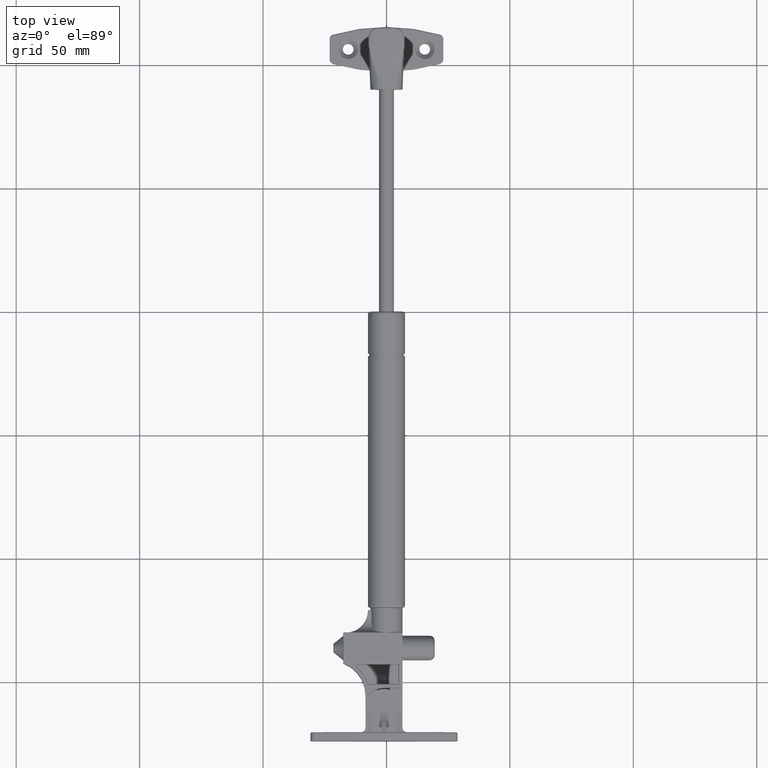
[diagram: clean part render]
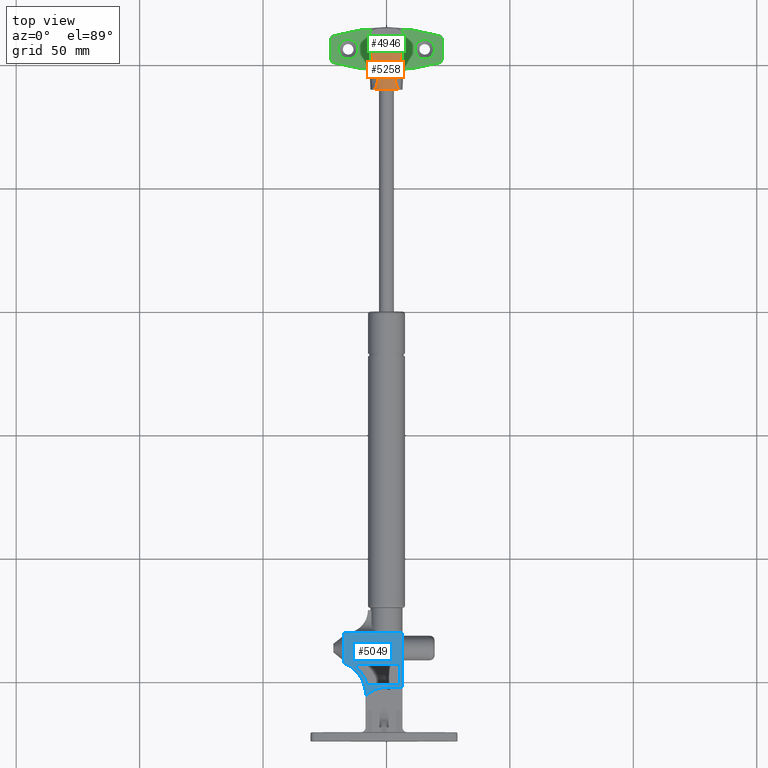
[diagram: same view with three faces highlighted in distinct colors, each labeled with its STEP entity id]
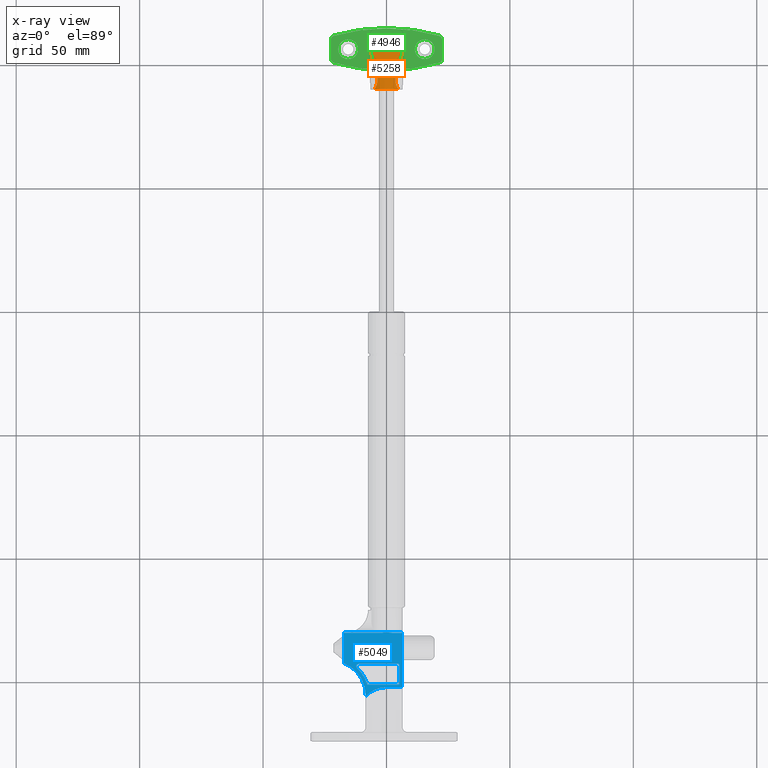
[diagram: x-ray of the same camera — body ghosted, the three highlighted faces saturated]
A machine part, top view with three faces highlighted in distinct colors.
The next image is the same camera in x-ray (body ghosted, the three faces saturated) — at least one of them is partly hidden behind the body in this view.
Their STEP definitions:

[orange] entity #5258 — the highlighted face is a freeform B-spline surface patch.
#132=B_SPLINE_CURVE_WITH_KNOTS('',3,(#10547,#10548,#10549,#10550,#10551,
#10552,#10553,#10554,#10555,#10556,#10557,#10558,#10559,#10560,#10561,#10562,
#10563,#10564,#10565,#10566,#10567,#10568,#10569,#10570,#10571,#10572,#10573,
#10574,#10575,#10576,#10577),.UNSPECIFIED.,.F.,.F.,(4,2,1,1,1,1,1,1,1,1,
1,1,1,1,1,1,1,1,1,1,1,1,1,1,1,1,1,4),(-5.18697830607912E-18,0.005999999454989,
0.0819430921341504,0.157886184813312,0.309772370171635,0.461658555529957,
0.61354474088828,0.689487833567441,0.765430926246603,0.841374018925764,
0.917317111604925,0.993260204284087,1.06920329696325,1.14514638964241,1.22108948232157,
1.29703257500073,1.37297566767989,1.44891876035906,1.52486185303822,1.60080494571738,
1.67674803839654,1.7526911310757,1.82863422375486,1.82977864950824,1.8309230754011,
1.83141785945748,1.83190656029675,1.83231392250842),.UNSPECIFIED.);
#135=B_SPLINE_CURVE_WITH_KNOTS('',3,(#10691,#10692,#10693,#10694,#10695,
#10696,#10697,#10698,#10699,#10700,#10701,#10702,#10703,#10704,#10705),
 .UNSPECIFIED.,.F.,.F.,(4,1,1,1,1,1,1,2,1,1,1,4),(1.83231400572769,1.83286935972674,
1.83335051197353,1.8338316533701,1.83431278390376,1.83479390356097,1.83527501233052,
1.83575611018608,1.83623719712616,1.83671827309807,1.83795860707612,1.83885858767025),
 .UNSPECIFIED.);
#165=B_SPLINE_CURVE_WITH_KNOTS('',3,(#11458,#11459,#11460,#11461,#11462,
#11463,#11464,#11465,#11466,#11467,#11468,#11469,#11470,#11471,#11472,#11473),
 .UNSPECIFIED.,.F.,.F.,(4,1,1,1,2,1,1,2,1,1,1,4),(4.28873465627844,4.28963520590476,
4.29087556718638,4.29135665487414,4.29183775374549,4.29231886344611,4.29279998397421,
4.29328111530315,4.29376225742148,4.29424341031536,4.29472457397187,4.29527947343608),
 .UNSPECIFIED.);
#166=B_SPLINE_CURVE_WITH_KNOTS('',3,(#11645,#11646,#11647,#11648,#11649,
#11650,#11651,#11652,#11653,#11654,#11655,#11656,#11657,#11658,#11659,#11660,
#11661,#11662,#11663,#11664,#11665,#11666,#11667,#11668,#11669,#11670,#11671,
#11672,#11673,#11674,#11675,#11676,#11677,#11678),.UNSPECIFIED.,.F.,.F.,
(4,1,1,1,1,1,1,1,1,1,1,1,1,1,1,1,1,1,1,1,1,1,1,1,1,1,1,1,1,2,4),(4.29527947343608,
4.29568722154669,4.2961759220629,4.29667069882611,4.29781512365342,4.29895954848117,
4.37489123419381,4.45082291990646,4.52675460561911,4.60268629133175,4.6786179770444,
4.75454966275704,4.83048134846969,4.90641303418233,4.98234471989498,5.05827640560763,
5.13420809132027,5.21013977703292,5.28607146274556,5.36200314845821,5.43793483417086,
5.5138665198835,5.58979820559615,5.66572989130879,5.74166157702144,5.81759326273409,
5.89352494844673,5.96945663415938,6.04538831987202,6.12132000558467,6.12732000558467),
 .UNSPECIFIED.);
#169=B_SPLINE_CURVE_WITH_KNOTS('',3,(#11744,#11745,#11746,#11747,#11748,
#11749),.UNSPECIFIED.,.F.,.F.,(4,2,4),(-0.699429970511352,-0.692719665874007,
-0.0442080078526685),.UNSPECIFIED.);
#171=B_SPLINE_CURVE_WITH_KNOTS('',3,(#11781,#11782,#11783,#11784,#11785,
#11786),.UNSPECIFIED.,.F.,.F.,(4,2,4),(-0.648530244733381,0.,0.00671030463730864),
 .UNSPECIFIED.);
#261=B_SPLINE_SURFACE_WITH_KNOTS('',3,3,((#11787,#11788,#11789,#11790),
(#11791,#11792,#11793,#11794),(#11795,#11796,#11797,#11798),(#11799,#11800,
#11801,#11802),(#11803,#11804,#11805,#11806),(#11807,#11808,#11809,#11810)),
 .UNSPECIFIED.,.F.,.F.,.F.,(4,1,1,4),(4,4),(0.,0.285714285714286,0.571428571428571,
1.),(0.,1.),.UNSPECIFIED.);
#1487=FACE_OUTER_BOUND('',#1909,.T.);
#1909=EDGE_LOOP('',(#4806,#4807,#4808,#4809,#4810,#4811,#4812));
#2238=CIRCLE('',#5892,6.5);
#2658=VERTEX_POINT('',#10508);
#2660=VERTEX_POINT('',#10515);
#2661=VERTEX_POINT('',#10668);
#2679=VERTEX_POINT('',#11296);
#2681=VERTEX_POINT('',#11434);
#2683=VERTEX_POINT('',#11644);
#2684=VERTEX_POINT('',#11737);
#3360=EDGE_CURVE('',#2660,#2658,#132,.T.);
#3363=EDGE_CURVE('',#2658,#2661,#135,.T.);
#3393=EDGE_CURVE('',#2679,#2681,#165,.T.);
#3394=EDGE_CURVE('',#2681,#2683,#166,.T.);
#3397=EDGE_CURVE('',#2684,#2679,#169,.T.);
#3399=EDGE_CURVE('',#2661,#2684,#171,.T.);
#3400=EDGE_CURVE('',#2683,#2660,#2238,.T.);
#4806=ORIENTED_EDGE('',*,*,#3394,.F.);
#4807=ORIENTED_EDGE('',*,*,#3393,.F.);
#4808=ORIENTED_EDGE('',*,*,#3397,.F.);
#4809=ORIENTED_EDGE('',*,*,#3399,.F.);
#4810=ORIENTED_EDGE('',*,*,#3363,.F.);
#4811=ORIENTED_EDGE('',*,*,#3360,.F.);
#4812=ORIENTED_EDGE('',*,*,#3400,.F.);
#5258=ADVANCED_FACE('',(#1487),#261,.F.);
#5892=AXIS2_PLACEMENT_3D('',#11811,#7355,#7356);
#7355=DIRECTION('center_axis',(0.,0.,-1.));
#7356=DIRECTION('ref_axis',(-1.,0.,0.));
#10508=CARTESIAN_POINT('',(-6.43486585605463,6.68592440987916,17.3809031736073));
#10515=CARTESIAN_POINT('',(-4.33904260238817,4.83970136420219,0.));
#10547=CARTESIAN_POINT('Ctrl Pts',(-4.33904260238817,4.83970136420219,4.48099834294438E-16));
#10548=CARTESIAN_POINT('Ctrl Pts',(-4.36415248476543,4.82379954177392,0.0273681504766424));
#10549=CARTESIAN_POINT('Ctrl Pts',(-4.38876921783388,4.80789931743702,0.0546645115043636));
#10550=CARTESIAN_POINT('Ctrl Pts',(-4.72045273705088,4.58833560795672,0.427567316963289));
#10551=CARTESIAN_POINT('Ctrl Pts',(-5.15566881977416,4.20687473016164,1.08438630508697));
#10552=CARTESIAN_POINT('Ctrl Pts',(-5.56710194835673,3.77574877536151,2.23649814429658));
#10553=CARTESIAN_POINT('Ctrl Pts',(-5.75791605558208,3.60329597723931,3.53776580255706));
#10554=CARTESIAN_POINT('Ctrl Pts',(-5.84157332482748,3.67924360206733,4.99199456476988));
#10555=CARTESIAN_POINT('Ctrl Pts',(-5.85558536912923,3.88776190126682,6.12960733774455));
#10556=CARTESIAN_POINT('Ctrl Pts',(-5.85578214954483,4.10632479712829,7.00478490584617));
#10557=CARTESIAN_POINT('Ctrl Pts',(-5.85274553217851,4.29013162309259,7.64754416306704));
#10558=CARTESIAN_POINT('Ctrl Pts',(-5.84995616271934,4.4879566514912,8.28201273007058));
#10559=CARTESIAN_POINT('Ctrl Pts',(-5.84964779140734,4.69527808408691,8.91379281761325));
#10560=CARTESIAN_POINT('Ctrl Pts',(-5.85410576443892,4.90804544667416,9.54861151518999));
#10561=CARTESIAN_POINT('Ctrl Pts',(-5.86517211143817,5.12274332541206,10.1918032593176));
#10562=CARTESIAN_POINT('Ctrl Pts',(-5.88442593138747,5.33601196887645,10.8476642991473));
#10563=CARTESIAN_POINT('Ctrl Pts',(-5.91299069281321,5.54445893630867,11.5188936920082));
#10564=CARTESIAN_POINT('Ctrl Pts',(-5.95151271291766,5.74448657503573,12.2066626762033));
#10565=CARTESIAN_POINT('Ctrl Pts',(-6.00004704441497,5.93232738230605,12.9106637082759));
#10566=CARTESIAN_POINT('Ctrl Pts',(-6.05799365491049,6.10427575772913,13.6292793412689));
#10567=CARTESIAN_POINT('Ctrl Pts',(-6.12408257827135,6.25722701291759,14.359894964402));
#10568=CARTESIAN_POINT('Ctrl Pts',(-6.1964988826131,6.38946623400103,15.0995315870299));
#10569=CARTESIAN_POINT('Ctrl Pts',(-6.27308311941986,6.50176851420749,15.8450590387318));
#10570=CARTESIAN_POINT('Ctrl Pts',(-6.35177462240882,6.59770150318796,16.5938342011688));
#10571=CARTESIAN_POINT('Ctrl Pts',(-6.40503759421406,6.65483529748817,17.0979839708344));
#10572=CARTESIAN_POINT('Ctrl Pts',(-6.43222309873817,6.68317365791434,17.3558348285359));
#10573=CARTESIAN_POINT('Ctrl Pts',(-6.4331903771855,6.68418104338633,17.365009763257));
#10574=CARTESIAN_POINT('Ctrl Pts',(-6.43392977422021,6.68495063700094,17.3720234665814));
#10575=CARTESIAN_POINT('Ctrl Pts',(-6.43441305132238,6.68545346431707,17.3766077950095));
#10576=CARTESIAN_POINT('Ctrl Pts',(-6.43472422692403,6.68577712184079,17.3795596478824));
#10577=CARTESIAN_POINT('Ctrl Pts',(-6.43486576930834,6.68592431966685,17.3809023507125));
#10668=CARTESIAN_POINT('',(-6.4416936914917,6.69278991922377,17.4456504672534));
#10691=CARTESIAN_POINT('Ctrl Pts',(-6.43486585605463,6.68592440987916,17.3809031736073));
#10692=CARTESIAN_POINT('Ctrl Pts',(-6.43505882886204,6.68612509306054,17.382733756983));
#10693=CARTESIAN_POINT('Ctrl Pts',(-6.43541901888678,6.68649861627549,17.3861504770443));
#10694=CARTESIAN_POINT('Ctrl Pts',(-6.43594648197059,6.68704271572181,17.3911536063881));
#10695=CARTESIAN_POINT('Ctrl Pts',(-6.43644821312774,6.68755772390865,17.3959123867664));
#10696=CARTESIAN_POINT('Ctrl Pts',(-6.43694999644508,6.68807024102113,17.4006713978307));
#10697=CARTESIAN_POINT('Ctrl Pts',(-6.43745183074069,6.68858026869294,17.4054306390023));
#10698=CARTESIAN_POINT('Ctrl Pts',(-6.43795371481308,6.68908780853244,17.4101901095024));
#10699=CARTESIAN_POINT('Ctrl Pts',(-6.43828834036222,6.68942451474717,17.4133632780762));
#10700=CARTESIAN_POINT('Ctrl Pts',(-6.43862297793048,6.68976038893558,17.4165364867874));
#10701=CARTESIAN_POINT('Ctrl Pts',(-6.43895762746221,6.69009543110069,17.4197097351144));
#10702=CARTESIAN_POINT('Ctrl Pts',(-6.43972376479193,6.69085860742892,17.4269741596968));
#10703=CARTESIAN_POINT('Ctrl Pts',(-6.44063579686679,6.69175890493986,17.4356212901697));
#10704=CARTESIAN_POINT('Ctrl Pts',(-6.44138030638799,6.69248552888034,17.4426795399398));
#10705=CARTESIAN_POINT('Ctrl Pts',(-6.44169353033975,6.69278976269732,17.4456489395142));
#11296=CARTESIAN_POINT('',(-6.44170058592167,-6.69259140240379,17.4456840500667));
#11434=CARTESIAN_POINT('',(-6.43487413106736,-6.68569380687724,17.3809403323942));
#11458=CARTESIAN_POINT('Ctrl Pts',(-6.44170058592167,-6.69259140240379,
17.4456840500667));
#11459=CARTESIAN_POINT('Ctrl Pts',(-6.44138724031413,-6.69228558820858,
17.4427130994168));
#11460=CARTESIAN_POINT('Ctrl Pts',(-6.44064238443157,-6.69155512266361,
17.4356506079478));
#11461=CARTESIAN_POINT('Ctrl Pts',(-6.43973037075518,-6.6906504808528,17.4270024422839));
#11462=CARTESIAN_POINT('Ctrl Pts',(-6.43896441243857,-6.68988377177739,
17.419738674093));
#11463=CARTESIAN_POINT('Ctrl Pts',(-6.43862984150417,-6.68954717572855,
17.4165657101706));
#11464=CARTESIAN_POINT('Ctrl Pts',(-6.43829528293155,-6.6892097425094,17.4133927865631));
#11465=CARTESIAN_POINT('Ctrl Pts',(-6.43796073688105,-6.68887147222237,
17.410219904785));
#11466=CARTESIAN_POINT('Ctrl Pts',(-6.43745897344249,-6.68836157107886,
17.4054608683408));
#11467=CARTESIAN_POINT('Ctrl Pts',(-6.43712450237306,-6.68801997212104,
17.4022883686522));
#11468=CARTESIAN_POINT('Ctrl Pts',(-6.43679004503117,-6.68767753446742,
17.3991159115539));
#11469=CARTESIAN_POINT('Ctrl Pts',(-6.43645560141373,-6.68733425805797,
17.3959434970106));
#11470=CARTESIAN_POINT('Ctrl Pts',(-6.43595399523817,-6.68681684291089,
17.3911851636391));
#11471=CARTESIAN_POINT('Ctrl Pts',(-6.4354268275804,-6.68627036517746,17.3861840502391));
#11472=CARTESIAN_POINT('Ctrl Pts',(-6.43506689189152,-6.68589526099596,
17.3827691984776));
#11473=CARTESIAN_POINT('Ctrl Pts',(-6.43487413106736,-6.68569380687724,
17.3809403323942));
#11644=CARTESIAN_POINT('',(-4.33904260238816,-4.83970136420219,0.));
#11645=CARTESIAN_POINT('Ctrl Pts',(-6.43487413106736,-6.68569380687724,
17.3809403323942));
#11646=CARTESIAN_POINT('Ctrl Pts',(-6.43473248764018,-6.68554577549213,
17.3795964552811));
#11647=CARTESIAN_POINT('Ctrl Pts',(-6.43442107755126,-6.6852202679982,17.3766419011214));
#11648=CARTESIAN_POINT('Ctrl Pts',(-6.43393778340827,-6.68471491515133,
17.3720566622781));
#11649=CARTESIAN_POINT('Ctrl Pts',(-6.43319856637466,-6.68394164791623,
17.3650435060301));
#11650=CARTESIAN_POINT('Ctrl Pts',(-6.43223152679269,-6.68292940419152,
17.355869287479));
#11651=CARTESIAN_POINT('Ctrl Pts',(-6.40505679044281,-6.65445661492058,
17.0980756618883));
#11652=CARTESIAN_POINT('Ctrl Pts',(-6.35182640262111,-6.5969236903321,16.5940598630598));
#11653=CARTESIAN_POINT('Ctrl Pts',(-6.27325041992989,-6.50000669372066,
15.8455760943684));
#11654=CARTESIAN_POINT('Ctrl Pts',(-6.19687329964649,-6.38645294227882,
15.1004683656102));
#11655=CARTESIAN_POINT('Ctrl Pts',(-6.12475904262576,-6.25287832622792,
14.3614095517777));
#11656=CARTESIAN_POINT('Ctrl Pts',(-6.05904278435508,-6.09869744711751,
13.6315212305585));
#11657=CARTESIAN_POINT('Ctrl Pts',(-6.00150145152056,-5.92572742253853,
12.9137264353219));
#11658=CARTESIAN_POINT('Ctrl Pts',(-5.95336479143297,-5.73711130125378,
12.2105627531198));
#11659=CARTESIAN_POINT('Ctrl Pts',(-5.91519870731436,-5.53655304092078,
11.5235622131637));
#11660=CARTESIAN_POINT('Ctrl Pts',(-5.88691972693854,-5.32780140585156,
10.8529481956439));
#11661=CARTESIAN_POINT('Ctrl Pts',(-5.86786834085297,-5.11442805301253,
10.197476797406));
#11662=CARTESIAN_POINT('Ctrl Pts',(-5.85690325498018,-4.89981145561399,
9.55439703638987));
#11663=CARTESIAN_POINT('Ctrl Pts',(-5.85246615738312,-4.68728786722651,
8.91940528462888));
#11664=CARTESIAN_POINT('Ctrl Pts',(-5.85267514401521,-4.48038978235295,
8.28718015146578));
#11665=CARTESIAN_POINT('Ctrl Pts',(-5.85535881256784,-4.28310292987209,
7.65207180434397));
#11666=CARTESIAN_POINT('Ctrl Pts',(-5.85807015316965,-4.10005900240722,
7.00850839856228));
#11667=CARTESIAN_POINT('Ctrl Pts',(-5.85789779784939,-3.93682531719411,
6.35135885811591));
#11668=CARTESIAN_POINT('Ctrl Pts',(-5.85151396602682,-3.79994011268791,
5.67668399814701));
#11669=CARTESIAN_POINT('Ctrl Pts',(-5.8343922915483,-3.69744164952966,4.98209901448646));
#11670=CARTESIAN_POINT('Ctrl Pts',(-5.80103909690767,-3.6385736094989,4.2659456934907));
#11671=CARTESIAN_POINT('Ctrl Pts',(-5.741149470015,-3.63654904919806,3.52497685639262));
#11672=CARTESIAN_POINT('Ctrl Pts',(-5.64164179952503,-3.70669122185886,
2.75631611218273));
#11673=CARTESIAN_POINT('Ctrl Pts',(-5.46616931604829,-3.88214900399613,
1.94913466803929));
#11674=CARTESIAN_POINT('Ctrl Pts',(-5.15525999572067,-4.20701998989903,
1.08411760489202));
#11675=CARTESIAN_POINT('Ctrl Pts',(-4.72049986578798,-4.58831214838663,
0.427552937177476));
#11676=CARTESIAN_POINT('Ctrl Pts',(-4.38876561005796,-4.80790110858756,
0.0546628654616471));
#11677=CARTESIAN_POINT('Ctrl Pts',(-4.36415256773894,-4.8237994486143,0.0273680727684804));
#11678=CARTESIAN_POINT('Ctrl Pts',(-4.33904260238815,-4.8397013642022,-5.82251849034034E-15));
#11737=CARTESIAN_POINT('',(-6.5,-4.96269692007445E-13,18.));
#11744=CARTESIAN_POINT('Ctrl Pts',(-6.5,-1.11022302462516E-15,18.));
#11745=CARTESIAN_POINT('Ctrl Pts',(-6.5,-0.0223676525561621,17.999999999977));
#11746=CARTESIAN_POINT('Ctrl Pts',(-6.5000194120652,-0.044734339900457,
17.9999919261881));
#11747=CARTESIAN_POINT('Ctrl Pts',(-6.49731167932179,-2.22896530891653,
17.99502928356));
#11748=CARTESIAN_POINT('Ctrl Pts',(-6.52323018624985,-4.39355932180683,
17.8353969512951));
#11749=CARTESIAN_POINT('Ctrl Pts',(-6.44178710938882,-6.6926010924759,17.4457231369711));
#11781=CARTESIAN_POINT('Ctrl Pts',(-6.4417762064863,6.6927991271387,17.4456875640613));
#11782=CARTESIAN_POINT('Ctrl Pts',(-6.52315400621419,4.39369054380115,17.8353466279657));
#11783=CARTESIAN_POINT('Ctrl Pts',(-6.49615157663385,2.22913398186824,17.9944141812846));
#11784=CARTESIAN_POINT('Ctrl Pts',(-6.50002785287376,0.0447336053791634,
17.9999963898566));
#11785=CARTESIAN_POINT('Ctrl Pts',(-6.5,0.022367652556203,17.9999999996379));
#11786=CARTESIAN_POINT('Ctrl Pts',(-6.5,-1.11022302462516E-15,18.));
#11787=CARTESIAN_POINT('Ctrl Pts',(-4.33904260238817,-4.83970136420219,
0.));
#11788=CARTESIAN_POINT('Ctrl Pts',(-5.05936173492544,-5.64313424280146,
6.));
#11789=CARTESIAN_POINT('Ctrl Pts',(-5.77968086746272,-6.44656712140073,
12.));
#11790=CARTESIAN_POINT('Ctrl Pts',(-6.5,-7.25,18.));
#11791=CARTESIAN_POINT('Ctrl Pts',(-5.1132930667581,-4.14554577545673,0.));
#11792=CARTESIAN_POINT('Ctrl Pts',(-5.57498007725741,-4.71994878979722,
6.));
#11793=CARTESIAN_POINT('Ctrl Pts',(-6.03831298950068,-5.29464460470713,
12.));
#11794=CARTESIAN_POINT('Ctrl Pts',(-6.5,-5.86904761904762,18.));
#11795=CARTESIAN_POINT('Ctrl Pts',(-6.31692899227135,-2.3817149841742,0.));
#11796=CARTESIAN_POINT('Ctrl Pts',(-6.37688396564228,-2.62404272304441,
6.00000000000001));
#11797=CARTESIAN_POINT('Ctrl Pts',(-6.44004502662907,-2.86481511827266,
12.));
#11798=CARTESIAN_POINT('Ctrl Pts',(-6.5,-3.10714285714286,18.));
#11799=CARTESIAN_POINT('Ctrl Pts',(-6.77443875646862,1.34261197373237,0.));
#11800=CARTESIAN_POINT('Ctrl Pts',(-6.68342368579787,1.47082339244675,6.));
#11801=CARTESIAN_POINT('Ctrl Pts',(-6.59101507067075,1.5979790574761,12.));
#11802=CARTESIAN_POINT('Ctrl Pts',(-6.5,1.72619047619048,18.));
#11803=CARTESIAN_POINT('Ctrl Pts',(-5.50041829894307,3.798467981084,0.));
#11804=CARTESIAN_POINT('Ctrl Pts',(-5.83104506753358,4.25691038404119,6.));
#11805=CARTESIAN_POINT('Ctrl Pts',(-6.16937323140949,4.72012902561424,12.));
#11806=CARTESIAN_POINT('Ctrl Pts',(-6.5,5.17857142857143,18.));
#11807=CARTESIAN_POINT('Ctrl Pts',(-4.33904260238817,4.83970136420219,0.));
#11808=CARTESIAN_POINT('Ctrl Pts',(-5.05936173492544,5.64313424280146,6.));
#11809=CARTESIAN_POINT('Ctrl Pts',(-5.77968086746272,6.44656712140073,12.));
#11810=CARTESIAN_POINT('Ctrl Pts',(-6.5,7.25,18.));
#11811=CARTESIAN_POINT('Origin',(0.,0.,0.));

[blue] entity #5049 — the highlighted planar face has unit normal (0, -0, 1).
#51=B_SPLINE_CURVE_WITH_KNOTS('',3,(#8165,#8166,#8167,#8168),
 .UNSPECIFIED.,.F.,.F.,(4,4),(-0.0708484573777862,-1.54339281103376E-17),
 .UNSPECIFIED.);
#52=B_SPLINE_CURVE_WITH_KNOTS('',3,(#8170,#8171,#8172,#8173,#8174,#8175),
 .UNSPECIFIED.,.F.,.F.,(4,2,4),(-0.00074418947265855,0.,0.157401116116637),
 .UNSPECIFIED.);
#53=B_SPLINE_CURVE_WITH_KNOTS('',3,(#8177,#8178,#8179,#8180,#8181,#8182),
 .UNSPECIFIED.,.F.,.F.,(4,2,4),(0.,0.145693468432784,0.146380219553809),
 .UNSPECIFIED.);
#54=B_SPLINE_CURVE_WITH_KNOTS('',3,(#8184,#8185,#8186,#8187),
 .UNSPECIFIED.,.F.,.F.,(4,4),(-0.0611024936836293,-3.46910838427561E-14),
 .UNSPECIFIED.);
#440=LINE('',#7964,#691);
#441=LINE('',#8149,#692);
#443=LINE('',#8159,#694);
#444=LINE('',#8161,#695);
#445=LINE('',#8163,#696);
#446=LINE('',#8188,#697);
#447=LINE('',#8193,#698);
#448=LINE('',#8201,#699);
#449=LINE('',#8204,#700);
#691=VECTOR('',#6485,0.547868569224583);
#692=VECTOR('',#6504,12.3005108042926);
#694=VECTOR('',#6514,6.8);
#695=VECTOR('',#6515,22.1);
#696=VECTOR('',#6516,4.01964914980173);
#697=VECTOR('',#6517,15.2326610017871);
#698=VECTOR('',#6520,12.2711101016768);
#699=VECTOR('',#6527,16.05);
#700=VECTOR('',#6530,7.59999999999999);
#1045=PLANE('',#5535);
#1135=FACE_BOUND('',#1677,.T.);
#1278=FACE_OUTER_BOUND('',#1676,.T.);
#1676=EDGE_LOOP('',(#3925,#3926,#3927,#3928,#3929,#3930,#3931,#3932,#3933,
#3934,#3935,#3936));
#1677=EDGE_LOOP('',(#3937,#3938,#3939,#3940,#3941,#3942,#3943,#3944));
#2043=CIRCLE('',#5527,13.9888888888889);
#2046=CIRCLE('',#5536,10.2);
#2047=CIRCLE('',#5537,0.4);
#2048=CIRCLE('',#5538,0.4);
#2049=CIRCLE('',#5539,15.2406561225607);
#2050=CIRCLE('',#5540,0.95);
#2051=CIRCLE('',#5541,0.4);
#2403=VERTEX_POINT('',#7942);
#2405=VERTEX_POINT('',#7960);
#2407=VERTEX_POINT('',#7966);
#2415=VERTEX_POINT('',#8148);
#2418=VERTEX_POINT('',#8156);
#2419=VERTEX_POINT('',#8158);
#2420=VERTEX_POINT('',#8160);
#2421=VERTEX_POINT('',#8162);
#2422=VERTEX_POINT('',#8164);
#2423=VERTEX_POINT('',#8169);
#2424=VERTEX_POINT('',#8176);
#2425=VERTEX_POINT('',#8183);
#2426=VERTEX_POINT('',#8189);
#2427=VERTEX_POINT('',#8190);
#2428=VERTEX_POINT('',#8192);
#2429=VERTEX_POINT('',#8194);
#2430=VERTEX_POINT('',#8196);
#2431=VERTEX_POINT('',#8198);
#2432=VERTEX_POINT('',#8200);
#2433=VERTEX_POINT('',#8202);
#2934=EDGE_CURVE('',#2403,#2405,#440,.T.);
#2937=EDGE_CURVE('',#2405,#2407,#2043,.T.);
#2948=EDGE_CURVE('',#2407,#2415,#441,.T.);
#2952=EDGE_CURVE('',#2418,#2403,#2046,.T.);
#2953=EDGE_CURVE('',#2419,#2418,#443,.T.);
#2954=EDGE_CURVE('',#2420,#2419,#444,.T.);
#2955=EDGE_CURVE('',#2421,#2420,#445,.T.);
#2956=EDGE_CURVE('',#2422,#2421,#51,.T.);
#2957=EDGE_CURVE('',#2423,#2422,#52,.T.);
#2958=EDGE_CURVE('',#2424,#2423,#53,.T.);
#2959=EDGE_CURVE('',#2425,#2424,#54,.T.);
#2960=EDGE_CURVE('',#2415,#2425,#446,.T.);
#2961=EDGE_CURVE('',#2426,#2427,#2047,.T.);
#2962=EDGE_CURVE('',#2428,#2426,#447,.T.);
#2963=EDGE_CURVE('',#2429,#2428,#2048,.T.);
#2964=EDGE_CURVE('',#2430,#2429,#2049,.T.);
#2965=EDGE_CURVE('',#2431,#2430,#2050,.T.);
#2966=EDGE_CURVE('',#2432,#2431,#448,.T.);
#2967=EDGE_CURVE('',#2433,#2432,#2051,.T.);
#2968=EDGE_CURVE('',#2427,#2433,#449,.T.);
#3925=ORIENTED_EDGE('',*,*,#2937,.F.);
#3926=ORIENTED_EDGE('',*,*,#2934,.F.);
#3927=ORIENTED_EDGE('',*,*,#2952,.F.);
#3928=ORIENTED_EDGE('',*,*,#2953,.F.);
#3929=ORIENTED_EDGE('',*,*,#2954,.F.);
#3930=ORIENTED_EDGE('',*,*,#2955,.F.);
#3931=ORIENTED_EDGE('',*,*,#2956,.F.);
#3932=ORIENTED_EDGE('',*,*,#2957,.F.);
#3933=ORIENTED_EDGE('',*,*,#2958,.F.);
#3934=ORIENTED_EDGE('',*,*,#2959,.F.);
#3935=ORIENTED_EDGE('',*,*,#2960,.F.);
#3936=ORIENTED_EDGE('',*,*,#2948,.F.);
#3937=ORIENTED_EDGE('',*,*,#2961,.F.);
#3938=ORIENTED_EDGE('',*,*,#2962,.F.);
#3939=ORIENTED_EDGE('',*,*,#2963,.F.);
#3940=ORIENTED_EDGE('',*,*,#2964,.F.);
#3941=ORIENTED_EDGE('',*,*,#2965,.F.);
#3942=ORIENTED_EDGE('',*,*,#2966,.F.);
#3943=ORIENTED_EDGE('',*,*,#2967,.F.);
#3944=ORIENTED_EDGE('',*,*,#2968,.F.);
#5049=ADVANCED_FACE('',(#1278,#1135),#1045,.T.);
#5527=AXIS2_PLACEMENT_3D('',#7970,#6492,#6493);
#5535=AXIS2_PLACEMENT_3D('',#8155,#6510,#6511);
#5536=AXIS2_PLACEMENT_3D('',#8157,#6512,#6513);
#5537=AXIS2_PLACEMENT_3D('',#8191,#6518,#6519);
#5538=AXIS2_PLACEMENT_3D('',#8195,#6521,#6522);
#5539=AXIS2_PLACEMENT_3D('',#8197,#6523,#6524);
#5540=AXIS2_PLACEMENT_3D('',#8199,#6525,#6526);
#5541=AXIS2_PLACEMENT_3D('',#8203,#6528,#6529);
#6485=DIRECTION('',(-2.22044604925031E-16,0.,-1.));
#6492=DIRECTION('center_axis',(0.,-1.,0.));
#6493=DIRECTION('ref_axis',(-0.826559132790873,0.,-0.562849891178812));
#6504=DIRECTION('',(0.,0.,-1.));
#6510=DIRECTION('center_axis',(0.,-1.,0.));
#6511=DIRECTION('ref_axis',(0.,0.,-1.));
#6512=DIRECTION('center_axis',(0.,-1.,0.));
#6513=DIRECTION('ref_axis',(0.447213595499958,0.,-0.894427190999916));
#6514=DIRECTION('',(1.,0.,0.));
#6515=DIRECTION('',(3.08395284618099E-16,0.,1.));
#6516=DIRECTION('',(-1.,0.,0.));
#6517=DIRECTION('',(-1.,0.,0.));
#6518=DIRECTION('center_axis',(0.,-1.,0.));
#6519=DIRECTION('ref_axis',(-0.707106781186546,0.,0.707106781186549));
#6520=DIRECTION('',(-1.,0.,0.));
#6521=DIRECTION('center_axis',(0.,-1.,0.));
#6522=DIRECTION('ref_axis',(0.591397115925268,0.,0.806380463103661));
#6523=DIRECTION('center_axis',(0.,1.,0.));
#6524=DIRECTION('ref_axis',(-0.847969706796223,0.,-0.530044692791021));
#6525=DIRECTION('center_axis',(0.,-1.,0.));
#6526=DIRECTION('ref_axis',(0.928904523829743,0.,-0.370319302236108));
#6527=DIRECTION('',(1.,0.,0.));
#6528=DIRECTION('center_axis',(0.,-1.,0.));
#6529=DIRECTION('ref_axis',(-0.707106781186546,0.,-0.707106781186549));
#6530=DIRECTION('',(-2.08166817117217E-16,0.,-1.));
#7942=CARTESIAN_POINT('',(8.40000000000001,-6.5,36.0478685692246));
#7960=CARTESIAN_POINT('',(8.4,-6.5,35.5));
#7964=CARTESIAN_POINT('',(8.40000000000001,-6.5,40.5));
#7966=CARTESIAN_POINT('',(17.3,-6.5,22.4695655397749));
#7970=CARTESIAN_POINT('Origin',(22.3888888888889,-6.5,35.5));
#8148=CARTESIAN_POINT('',(17.3,-6.5,10.1690547354823));
#8149=CARTESIAN_POINT('',(17.3,-6.5,31.5));
#8155=CARTESIAN_POINT('Origin',(1.,-6.5,40.5));
#8156=CARTESIAN_POINT('',(0.500000000000004,-6.5,32.3));
#8157=CARTESIAN_POINT('Origin',(0.500000000000004,-6.5,42.5));
#8158=CARTESIAN_POINT('',(-6.3,-6.5,32.3));
#8159=CARTESIAN_POINT('',(0.750000000000005,-6.5,32.3));
#8160=CARTESIAN_POINT('',(-6.3,-6.5,10.2));
#8161=CARTESIAN_POINT('',(-6.3,-6.5,31.5));
#8162=CARTESIAN_POINT('',(-2.28035085019828,-6.5,10.2));
#8163=CARTESIAN_POINT('',(9.25000000000001,-6.5,10.2));
#8164=CARTESIAN_POINT('',(-1.57481359843467,-6.5,10.1427835931251));
#8165=CARTESIAN_POINT('Ctrl Pts',(-1.57481359843548,-6.5,10.1427835931252));
#8166=CARTESIAN_POINT('Ctrl Pts',(-1.80850274774934,-6.5,10.1768665388733));
#8167=CARTESIAN_POINT('Ctrl Pts',(-2.04418932560566,-6.5,10.2));
#8168=CARTESIAN_POINT('Ctrl Pts',(-2.28035085019828,-6.5,10.2));
#8169=CARTESIAN_POINT('',(0.,-6.5,10.));
#8170=CARTESIAN_POINT('Ctrl Pts',(2.15910018503445E-18,-6.5,10.));
#8171=CARTESIAN_POINT('Ctrl Pts',(-0.00247419095483079,-6.5,10.0001786396734));
#8172=CARTESIAN_POINT('Ctrl Pts',(-0.00494902400602037,-6.5,10.0003539356161));
#8173=CARTESIAN_POINT('Ctrl Pts',(-0.530537782857755,-6.49999999999995,
10.0393237026257));
#8174=CARTESIAN_POINT('Ctrl Pts',(-1.0556359862784,-6.5,10.0670629084435));
#8175=CARTESIAN_POINT('Ctrl Pts',(-1.57481359843467,-6.5,10.1427835931251));
#8176=CARTESIAN_POINT('',(1.45818834358875,-6.5,10.1268807066323));
#8177=CARTESIAN_POINT('Ctrl Pts',(1.45818834358875,-6.5,10.1268807066323));
#8178=CARTESIAN_POINT('Ctrl Pts',(0.976466251105032,-6.5,10.065278844363));
#8179=CARTESIAN_POINT('Ctrl Pts',(0.491132720467856,-6.49999999999999,10.0360387911996));
#8180=CARTESIAN_POINT('Ctrl Pts',(0.00456678858015587,-6.5,10.0003278090377));
#8181=CARTESIAN_POINT('Ctrl Pts',(0.00228322688544181,-6.5,10.0001648518295));
#8182=CARTESIAN_POINT('Ctrl Pts',(-3.40015074950125E-18,-6.5,10.));
#8183=CARTESIAN_POINT('',(2.0673389982129,-6.5,10.1690547354823));
#8184=CARTESIAN_POINT('Ctrl Pts',(2.06733899798139,-6.5,10.1690547354823));
#8185=CARTESIAN_POINT('Ctrl Pts',(1.86366401903607,-6.5,10.1690547354827));
#8186=CARTESIAN_POINT('Ctrl Pts',(1.66021813552051,-6.5,10.1527159581416));
#8187=CARTESIAN_POINT('Ctrl Pts',(1.45818834358916,-6.5,10.1268807066323));
#8188=CARTESIAN_POINT('',(17.5,-6.5,10.1690547354823));
#8189=CARTESIAN_POINT('',(-4.8,-6.5,31.2));
#8190=CARTESIAN_POINT('',(-5.2,-6.5,30.8));
#8191=CARTESIAN_POINT('Origin',(-4.8,-6.5,30.8));
#8192=CARTESIAN_POINT('',(7.47111010167678,-6.5,31.2));
#8193=CARTESIAN_POINT('',(-2.,-6.5,31.2));
#8194=CARTESIAN_POINT('',(7.85262296585117,-6.5,30.9201995610202));
#8195=CARTESIAN_POINT('Origin',(7.47111010167678,-6.5,30.8));
#8196=CARTESIAN_POINT('',(11.9035834227063,-6.5,24.4394408673436));
#8197=CARTESIAN_POINT('Origin',(22.3888888888889,-6.5,35.5));
#8198=CARTESIAN_POINT('',(11.25,-6.5,22.8));
#8199=CARTESIAN_POINT('Origin',(11.25,-6.5,23.75));
#8200=CARTESIAN_POINT('',(-4.8,-6.5,22.8));
#8201=CARTESIAN_POINT('',(6.12500000000001,-6.5,22.8));
#8202=CARTESIAN_POINT('',(-5.2,-6.5,23.2));
#8203=CARTESIAN_POINT('Origin',(-4.8,-6.5,23.2));
#8204=CARTESIAN_POINT('',(-5.19999999999999,-6.5,31.75));

[green] entity #4946 — the highlighted planar face has unit normal (0, 0, 1).
#328=LINE('',#7427,#579);
#329=LINE('',#7447,#580);
#579=VECTOR('',#5953,8.02666420895788);
#580=VECTOR('',#5980,8.02666420895788);
#1000=PLANE('',#5334);
#1092=FACE_BOUND('',#1531,.T.);
#1093=FACE_BOUND('',#1532,.T.);
#1094=FACE_BOUND('',#1533,.T.);
#1175=FACE_OUTER_BOUND('',#1530,.T.);
#1530=EDGE_LOOP('',(#3496,#3497,#3498,#3499,#3500,#3501,#3502,#3503));
#1531=EDGE_LOOP('',(#3504));
#1532=EDGE_LOOP('',(#3505));
#1533=EDGE_LOOP('',(#3506));
#1940=CIRCLE('',#5301,1.5);
#1945=CIRCLE('',#5307,76.8214285714289);
#1948=CIRCLE('',#5311,1.5);
#1952=CIRCLE('',#5317,1.5);
#1955=CIRCLE('',#5321,76.8214285714285);
#1958=CIRCLE('',#5325,1.5);
#1962=CIRCLE('',#5335,4.);
#1963=CIRCLE('',#5336,4.);
#1964=CIRCLE('',#5337,6.);
#2246=VERTEX_POINT('',#7403);
#2247=VERTEX_POINT('',#7405);
#2249=VERTEX_POINT('',#7411);
#2251=VERTEX_POINT('',#7417);
#2253=VERTEX_POINT('',#7423);
#2255=VERTEX_POINT('',#7429);
#2257=VERTEX_POINT('',#7435);
#2259=VERTEX_POINT('',#7441);
#2266=VERTEX_POINT('',#7468);
#2267=VERTEX_POINT('',#7470);
#2268=VERTEX_POINT('',#7472);
#2706=EDGE_CURVE('',#2246,#2247,#1940,.T.);
#2711=EDGE_CURVE('',#2247,#2249,#1945,.T.);
#2714=EDGE_CURVE('',#2249,#2251,#1948,.T.);
#2717=EDGE_CURVE('',#2251,#2253,#328,.T.);
#2720=EDGE_CURVE('',#2253,#2255,#1952,.T.);
#2723=EDGE_CURVE('',#2255,#2257,#1955,.T.);
#2726=EDGE_CURVE('',#2257,#2259,#1958,.T.);
#2727=EDGE_CURVE('',#2259,#2246,#329,.T.);
#2738=EDGE_CURVE('',#2266,#2266,#1962,.T.);
#2739=EDGE_CURVE('',#2267,#2267,#1963,.T.);
#2740=EDGE_CURVE('',#2268,#2268,#1964,.T.);
#3496=ORIENTED_EDGE('',*,*,#2706,.F.);
#3497=ORIENTED_EDGE('',*,*,#2727,.F.);
#3498=ORIENTED_EDGE('',*,*,#2726,.F.);
#3499=ORIENTED_EDGE('',*,*,#2723,.F.);
#3500=ORIENTED_EDGE('',*,*,#2720,.F.);
#3501=ORIENTED_EDGE('',*,*,#2717,.F.);
#3502=ORIENTED_EDGE('',*,*,#2714,.F.);
#3503=ORIENTED_EDGE('',*,*,#2711,.F.);
#3504=ORIENTED_EDGE('',*,*,#2738,.T.);
#3505=ORIENTED_EDGE('',*,*,#2739,.T.);
#3506=ORIENTED_EDGE('',*,*,#2740,.T.);
#4946=ADVANCED_FACE('',(#1175,#1092,#1093,#1094),#1000,.T.);
#5301=AXIS2_PLACEMENT_3D('',#7406,#5926,#5927);
#5307=AXIS2_PLACEMENT_3D('',#7415,#5938,#5939);
#5311=AXIS2_PLACEMENT_3D('',#7421,#5946,#5947);
#5317=AXIS2_PLACEMENT_3D('',#7433,#5960,#5961);
#5321=AXIS2_PLACEMENT_3D('',#7439,#5968,#5969);
#5325=AXIS2_PLACEMENT_3D('',#7445,#5976,#5977);
#5334=AXIS2_PLACEMENT_3D('',#7467,#6002,#6003);
#5335=AXIS2_PLACEMENT_3D('',#7469,#6004,#6005);
#5336=AXIS2_PLACEMENT_3D('',#7471,#6006,#6007);
#5337=AXIS2_PLACEMENT_3D('',#7473,#6008,#6009);
#5926=DIRECTION('center_axis',(0.,0.,-1.));
#5927=DIRECTION('ref_axis',(0.600497659899527,0.799626513101705,0.));
#5938=DIRECTION('center_axis',(0.,0.,-1.));
#5939=DIRECTION('ref_axis',(1.,4.59473362616229E-16,0.));
#5946=DIRECTION('center_axis',(0.,0.,-1.));
#5947=DIRECTION('ref_axis',(0.600497659899527,-0.799626513101706,0.));
#5953=DIRECTION('',(-1.,-4.03717463500057E-16,0.));
#5960=DIRECTION('center_axis',(0.,0.,-1.));
#5961=DIRECTION('ref_axis',(-0.600497659899527,-0.799626513101705,0.));
#5968=DIRECTION('center_axis',(0.,0.,-1.));
#5969=DIRECTION('ref_axis',(-1.,-3.73322107125688E-16,0.));
#5976=DIRECTION('center_axis',(0.,0.,-1.));
#5977=DIRECTION('ref_axis',(-0.600497659899527,0.799626513101706,0.));
#5980=DIRECTION('',(1.,4.03717463500057E-16,0.));
#6002=DIRECTION('center_axis',(0.,0.,1.));
#6003=DIRECTION('ref_axis',(1.,0.,0.));
#6004=DIRECTION('center_axis',(0.,0.,-1.));
#6005=DIRECTION('ref_axis',(1.,0.,0.));
#6006=DIRECTION('center_axis',(0.,0.,-1.));
#6007=DIRECTION('ref_axis',(1.,0.,0.));
#6008=DIRECTION('center_axis',(0.,0.,-1.));
#6009=DIRECTION('ref_axis',(-1.,0.,0.));
#7403=CARTESIAN_POINT('',(4.01333210447894,22.5,3.5));
#7405=CARTESIAN_POINT('',(5.45385365421252,21.4182076813656,3.5));
#7406=CARTESIAN_POINT('Origin',(4.01333210447894,21.,3.5));
#7411=CARTESIAN_POINT('',(5.45385365421254,-21.4182076813656,3.5));
#7415=CARTESIAN_POINT('Origin',(-68.3214285714289,-2.22044604925031E-14,
3.5));
#7417=CARTESIAN_POINT('',(4.01333210447895,-22.5,3.5));
#7421=CARTESIAN_POINT('Origin',(4.01333210447895,-21.,3.5));
#7423=CARTESIAN_POINT('',(-4.01333210447893,-22.5,3.5));
#7427=CARTESIAN_POINT('',(-2.74999999999999,-22.5,3.5));
#7429=CARTESIAN_POINT('',(-5.45385365421251,-21.4182076813656,3.5));
#7433=CARTESIAN_POINT('Origin',(-4.01333210447893,-21.,3.5));
#7435=CARTESIAN_POINT('',(-5.45385365421253,21.4182076813656,3.5));
#7439=CARTESIAN_POINT('Origin',(68.3214285714285,2.88657986402541E-14,3.5));
#7441=CARTESIAN_POINT('',(-4.01333210447894,22.5,3.5));
#7445=CARTESIAN_POINT('Origin',(-4.01333210447894,21.,3.5));
#7447=CARTESIAN_POINT('',(2.75,22.5,3.5));
#7467=CARTESIAN_POINT('Origin',(2.17075193439225E-15,1.04913586853478E-14,
3.5));
#7468=CARTESIAN_POINT('',(4.,-15.5,3.5));
#7469=CARTESIAN_POINT('Origin',(0.,-15.5,3.5));
#7470=CARTESIAN_POINT('',(3.99999999999999,15.5,3.5));
#7471=CARTESIAN_POINT('Origin',(-5.69460761603519E-15,15.5,3.5));
#7472=CARTESIAN_POINT('',(6.,7.34788079488412E-16,3.5));
#7473=CARTESIAN_POINT('Origin',(0.,0.,3.5));